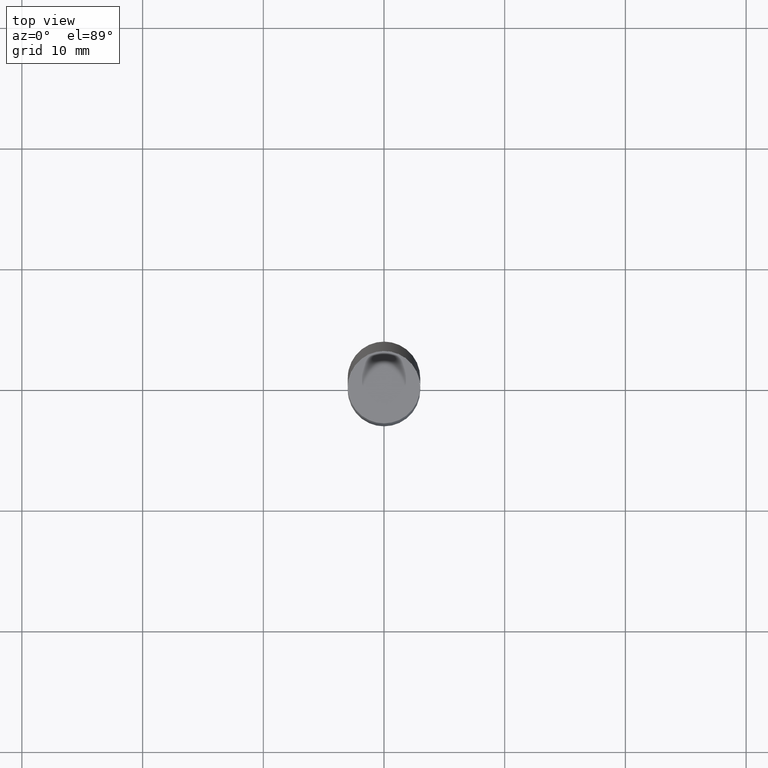
[diagram: clean part render]
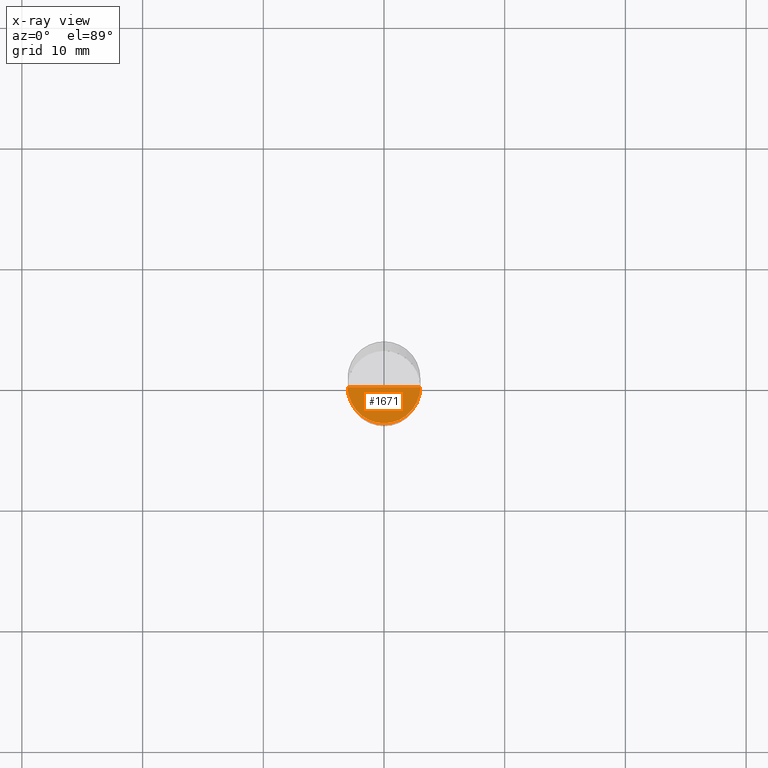
[diagram: x-ray — body ghosted, one internal face saturated and labeled with its STEP entity id]
A machine part, top view, then the same camera in x-ray: the body is ghosted and one INTERNAL B-rep face — a face not visible from any outside direction — is saturated and labeled: STEP entity #1671.
In plain terms, the highlighted face is a freeform B-spline surface patch.
Its self-contained STEP definition (entity closure, byte-faithful):
#1478=CARTESIAN_POINT('',(3.0,0.0,0.0));
#1482=CARTESIAN_POINT('',(-3.0,0.0,0.0));
#1483=CARTESIAN_POINT('',(0.0,0.0,0.0));
#1499=CARTESIAN_POINT('',(-3.0,-3.0,0.0));
#1500=CARTESIAN_POINT('',(0.0,-3.0,0.0));
#1501=CARTESIAN_POINT('',(3.0,-3.0,0.0));
#1656=(
BOUNDED_SURFACE()
B_SPLINE_SURFACE(1,2,(
(#1482,#1499,#1500,#1501,#1478),
(#1483,#1483,#1483,#1483,#1483)
), .UNSPECIFIED.,.F.,.F.,.F.)
B_SPLINE_SURFACE_WITH_KNOTS((2,2),(3,2,3),(
0.0,1.0),(
0.0,0.5,1.0), .UNSPECIFIED.)
GEOMETRIC_REPRESENTATION_ITEM()
RATIONAL_B_SPLINE_SURFACE(((1.0,0.707106781187,1.0,0.707106781187,1.0),
(1.0,0.707106781187,1.0,0.707106781187,1.0)
))
REPRESENTATION_ITEM('')
SURFACE()
);
#1657=(
BOUNDED_CURVE()
B_SPLINE_CURVE(1,(#1483,#1478),.UNSPECIFIED.,.F.,.F.)
B_SPLINE_CURVE_WITH_KNOTS((2,2),
(0.0,1.0),.UNSPECIFIED.)
CURVE()
GEOMETRIC_REPRESENTATION_ITEM()
RATIONAL_B_SPLINE_CURVE((1.0,1.0))
REPRESENTATION_ITEM('')
);
#1658=(
BOUNDED_CURVE()
B_SPLINE_CURVE(2,(#1478,#1501,#1500,#1499,#1482),.UNSPECIFIED.,.F.,.F.)
B_SPLINE_CURVE_WITH_KNOTS((3,2,3),
(0.0,0.5,1.0),.UNSPECIFIED.)
CURVE()
GEOMETRIC_REPRESENTATION_ITEM()
RATIONAL_B_SPLINE_CURVE((1.0,0.707106781187,1.0,0.707106781187,1.0))
REPRESENTATION_ITEM('')
);
#1659=(
BOUNDED_CURVE()
B_SPLINE_CURVE(1,(#1482,#1483),.UNSPECIFIED.,.F.,.F.)
B_SPLINE_CURVE_WITH_KNOTS((2,2),
(0.0,1.0),.UNSPECIFIED.)
CURVE()
GEOMETRIC_REPRESENTATION_ITEM()
RATIONAL_B_SPLINE_CURVE((1.0,1.0))
REPRESENTATION_ITEM('')
);
#1660=VERTEX_POINT('',#1478);
#1661=VERTEX_POINT('',#1482);
#1662=VERTEX_POINT('',#1483);
#1663=EDGE_CURVE('',#1662,#1660,#1657,.T.);
#1664=EDGE_CURVE('',#1660,#1661,#1658,.T.);
#1665=EDGE_CURVE('',#1661,#1662,#1659,.T.);
#1666=ORIENTED_EDGE('',*,*,#1663,.T.);
#1667=ORIENTED_EDGE('',*,*,#1664,.T.);
#1668=ORIENTED_EDGE('',*,*,#1665,.T.);
#1669=EDGE_LOOP('',(#1666,#1667,#1668));
#1670=FACE_OUTER_BOUND('',#1669,.T.);
#1671=ADVANCED_FACE('',(#1670),#1656,.T.);